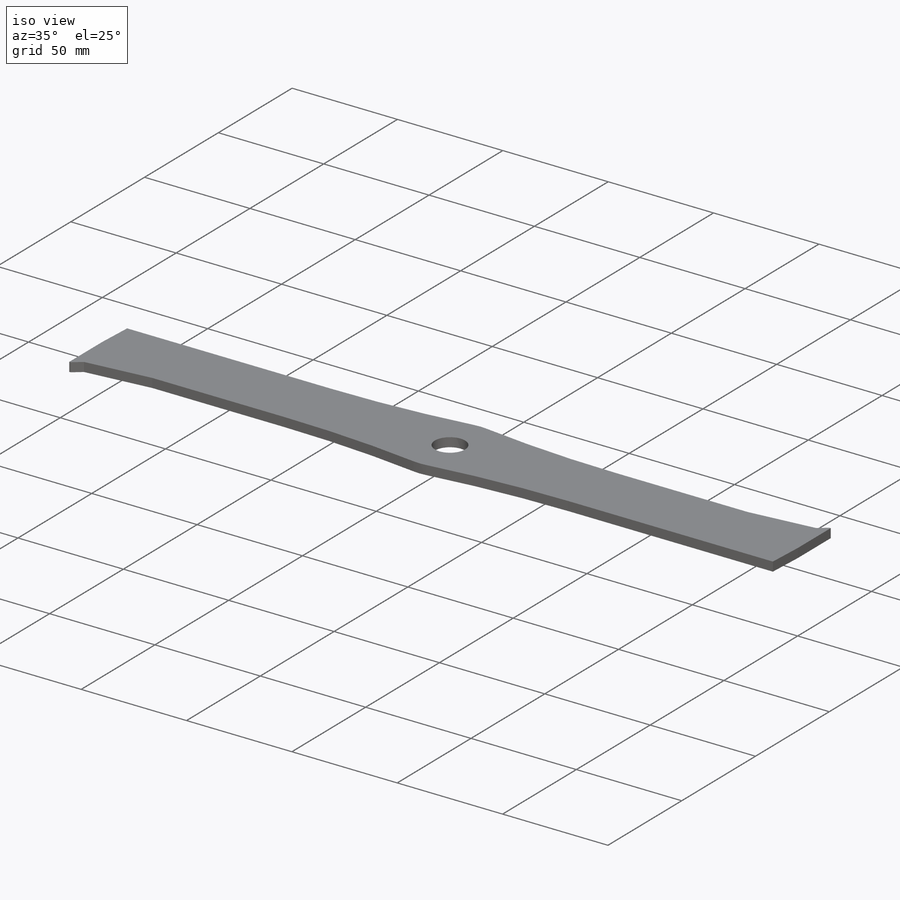
[diagram: iso view]
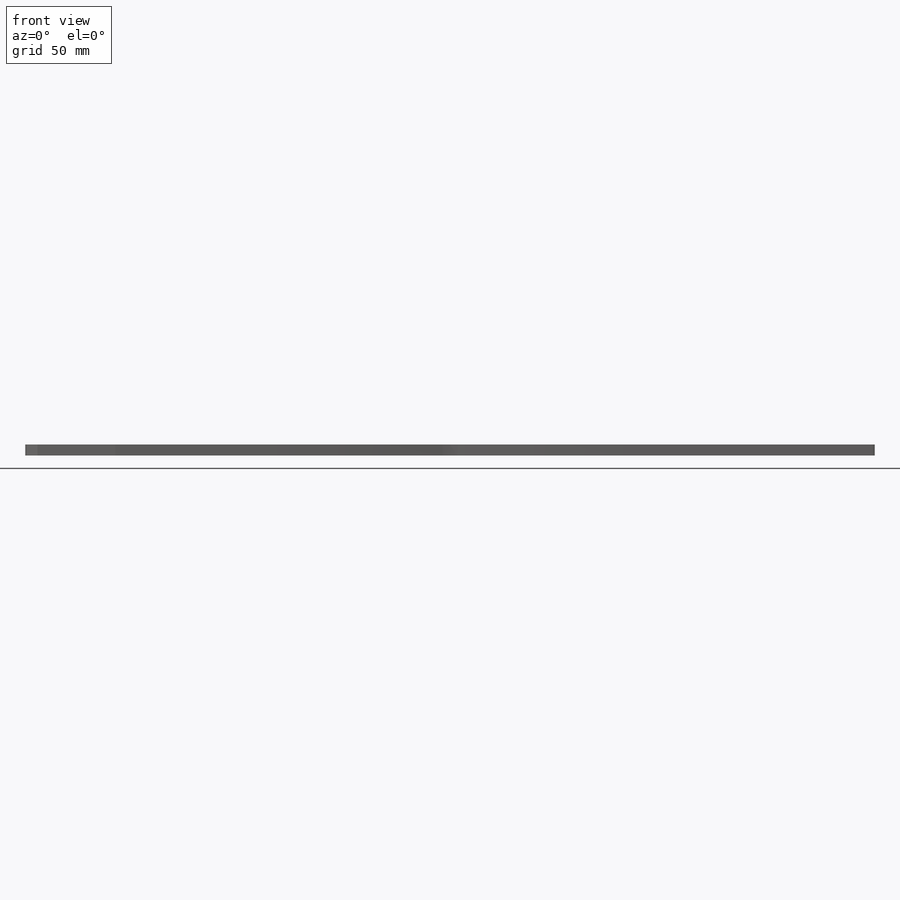
[diagram: front view]
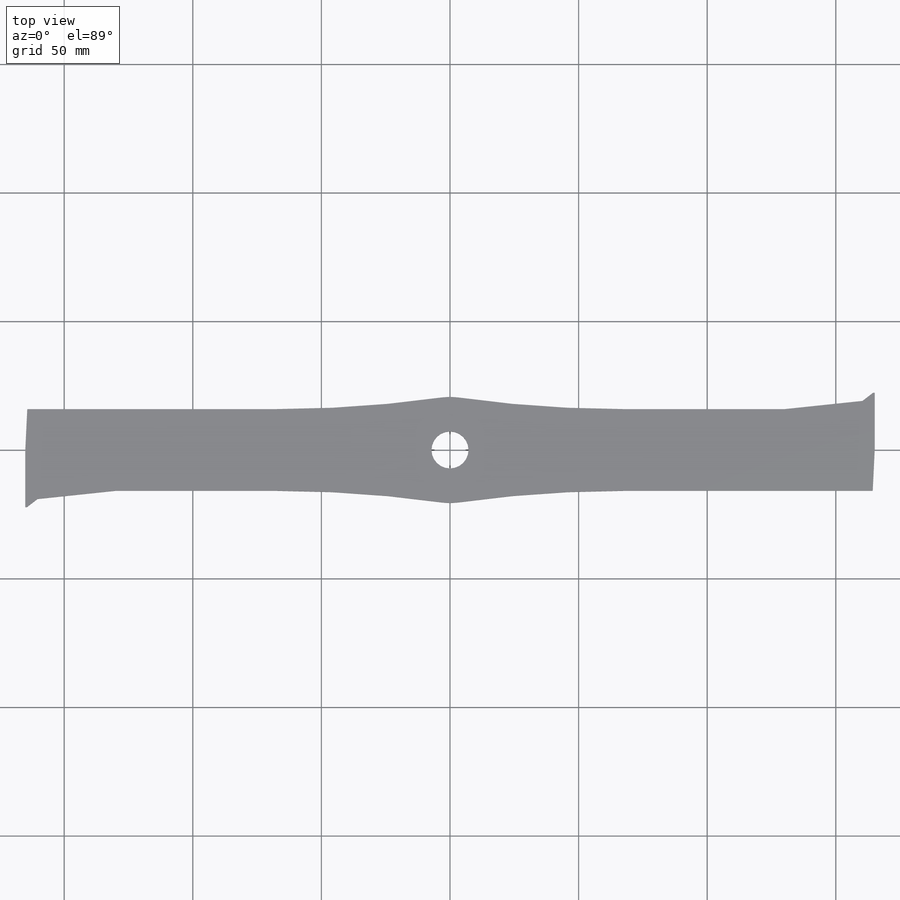
[diagram: top view]
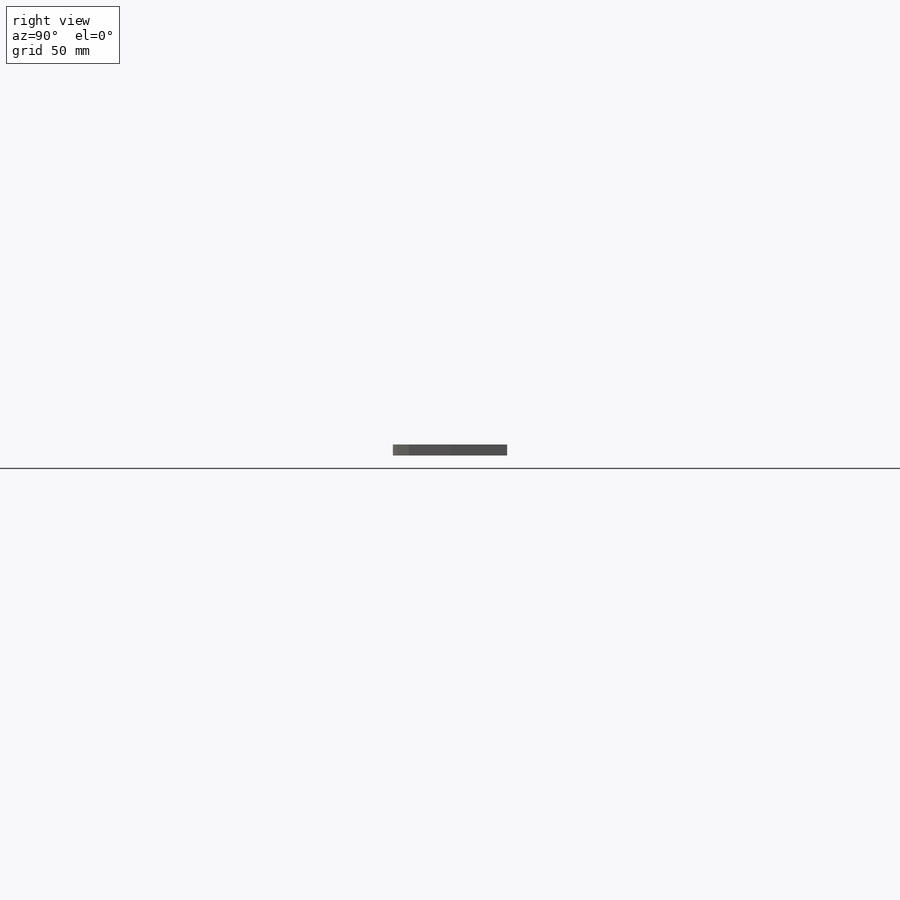
[diagram: right view]
SOLIDWORKS PART (.sldprt)
format: sldprt  version: not decoded by parser v0  size: 216,576 bytes
history: native  units: mm
features: sketch x4, extrude x3, material x1, fillet x1, cut_extrude x1 (+11 scaffold rows collapsed)
feature tree (21):
  scaffold x11  (default folders/planes/origin — collapsed)
  material  "AISI Type A2 Tool Steel"
  sketch  "Sketch1"  dims[D3=14.3891mm D1=330.2mm D2=31.75mm]
  extrude  "Boss-Extrude1"  Depth=4.318mm
  sketch  "Sketch2"  dims[D1=41.275mm]
  extrude  "Boss-Extrude2"  [1 undecoded]
  fillet  "Fillet1"  Radius=457.2mm
  sketch  "Sketch5"  dims[c1.D1=6.35mm c1.D2=0.635mm c1.D4=34.925mm c1.D5=~4.479309mm c1.D6=4.7625mm c1.D7=3.175mm c1.D3=2.0 c2.D5=2.0]
  extrude  "Boss-Extrude3"  [1 undecoded]
  sketch  "Sketch7"
  cut_extrude  "Cut-Extrude2"  [1 undecoded]
decode coverage: 5 of 9 modeling features carry decoded parameters
note: ~ marks probable driven/reference dimensions
note: 3 parameter values undecoded
summary: no parameter record found for 3 features
note: suppression state not decoded; provenance and decode notes live in map.json
